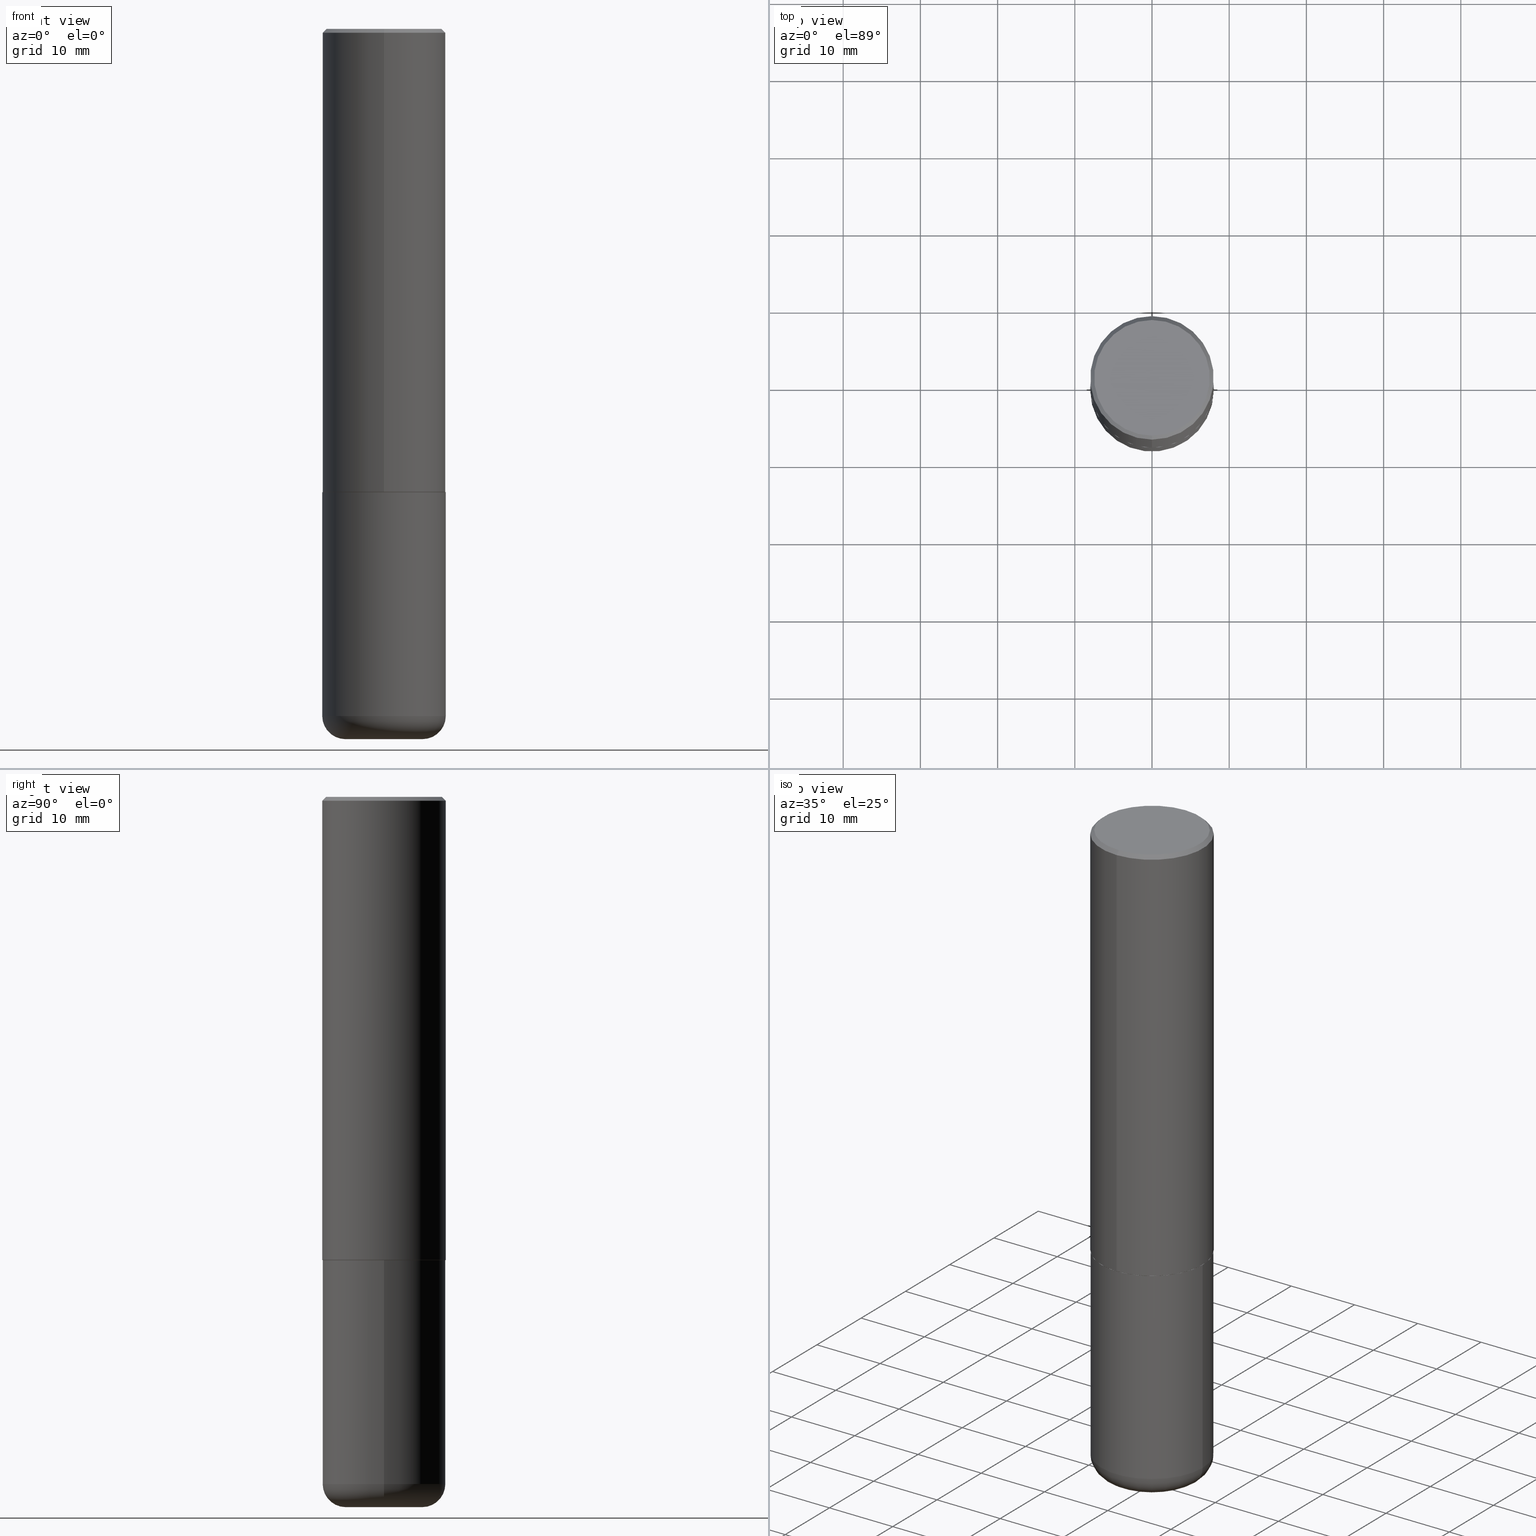
[diagram: canonical four-view strip — front | top / right | iso, engineering-drawing reading convention]
A machine part, canonical four-view strip (front | top / right | iso — engineering-drawing reading convention). The complete STEP part file that produces these views, byte-faithful:
ISO-10303-21;
HEADER;
FILE_DESCRIPTION (( 'STEP AP203' ),
    '1' );
FILE_NAME ('45181.STEP',
    '2024-03-04T16:16:40',
    ( '' ),
    ( '' ),
    'SwSTEP 2.0',
    'SolidWorks 2023',
    '' );
FILE_SCHEMA (( 'CONFIG_CONTROL_DESIGN' ));
ENDSEC;

DATA;
#1 = CC_DESIGN_PERSON_AND_ORGANIZATION_ASSIGNMENT ( #315, #181, ( #361 ) ) ;
#2 = CARTESIAN_POINT ( 'NONE',  ( 4.893464128848368385E-31, -6.979344562289319109E-17, -0.02000000000000006981 ) ) ;
#3 = AXIS2_PLACEMENT_3D ( 'NONE', #224, #129, #417 ) ;
#4 = CIRCLE ( 'NONE', #58, 0.1180999999999999966 ) ;
#5 = ORIENTED_EDGE ( 'NONE', *, *, #223, .F. ) ;
#6 = ORIENTED_EDGE ( 'NONE', *, *, #298, .F. ) ;
#7 = CARTESIAN_POINT ( 'NONE',  ( -0.3149500000000000077, 2.237854346276435590E-15, -1.549218606675782676E-29 ) ) ;
#8 = VERTEX_POINT ( 'NONE', #278 ) ;
#9 = DIRECTION ( 'NONE',  ( -4.937700262165053702E-15, -0.7071067811866175168, 0.7071067811864775177 ) ) ;
#10 = SECURITY_CLASSIFICATION ( '', '', #416 ) ;
#11 = VERTEX_POINT ( 'NONE', #244 ) ;
#12 = DIRECTION ( 'NONE',  ( -6.982962677686265922E-15, -1.000000000000000000, 3.483117034309591132E-15 ) ) ;
#13 = ORIENTED_EDGE ( 'NONE', *, *, #380, .T. ) ;
#14 = FACE_OUTER_BOUND ( 'NONE', #392, .T. ) ;
#15 = ORIENTED_EDGE ( 'NONE', *, *, #175, .F. ) ;
#16 = DIRECTION ( 'NONE',  ( -2.445468806185136877E-29, 3.491481338843145188E-15, 1.000000000000000000 ) ) ;
#17 = ORIENTED_EDGE ( 'NONE', *, *, #366, .T. ) ;
#18 = CC_DESIGN_PERSON_AND_ORGANIZATION_ASSIGNMENT ( #56, #383, ( #230 ) ) ;
#19 = COORDINATED_UNIVERSAL_TIME_OFFSET ( 5, 0, .BEHIND. ) ;
#20 = EDGE_LOOP ( 'NONE', ( #80, #98, #240, #42 ) ) ;
#21 = DIRECTION ( 'NONE',  ( -2.446732064424175452E-29, 3.489672281144647968E-15, 1.000000000000000000 ) ) ;
#22 = ADVANCED_FACE ( 'NONE', ( #238 ), #386, .T. ) ;
#23 = DIRECTION ( 'NONE',  ( -2.445468806185136597E-29, 3.491481338843145583E-15, 1.000000000000000000 ) ) ;
#24 = COORDINATED_UNIVERSAL_TIME_OFFSET ( 5, 0, .BEHIND. ) ;
#25 = CC_DESIGN_PERSON_AND_ORGANIZATION_ASSIGNMENT ( #323, #288, ( #77 ) ) ;
#26 = DIRECTION ( 'NONE',  ( 2.446732064424175452E-29, -3.489672281144647968E-15, -1.000000000000000000 ) ) ;
#27 = AXIS2_PLACEMENT_3D ( 'NONE', #114, #126, #324 ) ;
#28 = DATE_AND_TIME ( #152, #391 ) ;
#29 = FACE_OUTER_BOUND ( 'NONE', #301, .T. ) ;
#30 = AXIS2_PLACEMENT_3D ( 'NONE', #212, #411, #87 ) ;
#31 =( GEOMETRIC_REPRESENTATION_CONTEXT ( 3 ) GLOBAL_UNCERTAINTY_ASSIGNED_CONTEXT ( ( #182 ) ) GLOBAL_UNIT_ASSIGNED_CONTEXT ( ( #286, #414, #93 ) ) REPRESENTATION_CONTEXT ( 'NONE', 'WORKASPACE' ) );
#32 = DATE_TIME_ROLE ( 'classification_date' ) ;
#33 = EDGE_CURVE ( 'NONE', #193, #78, #50, .T. ) ;
#34 = CARTESIAN_POINT ( 'NONE',  ( 5.776686413970529753E-29, -8.247577218615278049E-15, -2.362199999999999633 ) ) ;
#35 = ORIENTED_EDGE ( 'NONE', *, *, #55, .T. ) ;
#36 = ORIENTED_EDGE ( 'NONE', *, *, #149, .F. ) ;
#37 = APPROVAL_PERSON_ORGANIZATION ( #219, #369, #353 ) ;
#38 = FACE_OUTER_BOUND ( 'NONE', #334, .T. ) ;
#39 = ORIENTED_EDGE ( 'NONE', *, *, #46, .F. ) ;
#40 = EDGE_CURVE ( 'NONE', #196, #310, #337, .T. ) ;
#41 = DIRECTION ( 'NONE',  ( -6.982962677686266711E-15, -1.000000000000000000, 3.480615376543096919E-15 ) ) ;
#42 = ORIENTED_EDGE ( 'NONE', *, *, #263, .F. ) ;
#43 = CARTESIAN_POINT ( 'NONE',  ( 2.059624841783565247E-15, 0.2949500000000001565, -1.117050136154758706E-15 ) ) ;
#44 = ORIENTED_EDGE ( 'NONE', *, *, #69, .T. ) ;
#45 = DIRECTION ( 'NONE',  ( -6.982962677686265922E-15, -1.000000000000000000, 3.489672281144648363E-15 ) ) ;
#46 = EDGE_CURVE ( 'NONE', #198, #193, #308, .T. ) ;
#47 = DIRECTION ( 'NONE',  ( -6.982962677686265922E-15, -1.000000000000000000, 3.469564049740290009E-15 ) ) ;
#48 = CARTESIAN_POINT ( 'NONE',  ( -2.160713844398143363E-15, -0.3149500000000000632, -0.01999999999999896999 ) ) ;
#49 = VERTEX_POINT ( 'NONE', #148 ) ;
#50 = CIRCLE ( 'NONE', #377, 0.3149500000000002853 ) ;
#51 = VERTEX_POINT ( 'NONE', #277 ) ;
#52 = AXIS2_PLACEMENT_3D ( 'NONE', #2, #399, #12 ) ;
#53 = ADVANCED_BREP_SHAPE_REPRESENTATION ( '45181', ( #407, #130, #404 ), #31 ) ;
#54 = CARTESIAN_POINT ( 'NONE',  ( 2.237854346276435985E-15, 0.3149500000000001743, -1.099072284946507453E-15 ) ) ;
#55 = EDGE_CURVE ( 'NONE', #8, #305, #156, .T. ) ;
#56 = PERSON_AND_ORGANIZATION ( #72, #326 ) ;
#57 = CARTESIAN_POINT ( 'NONE',  ( 8.568678149992099474E-29, -1.223380146317249786E-14, -3.503899999999999793 ) ) ;
#58 = AXIS2_PLACEMENT_3D ( 'NONE', #101, #300, #107 ) ;
#59 = APPROVAL_STATUS ( 'not_yet_approved' ) ;
#60 = CARTESIAN_POINT ( 'NONE',  ( -2.199284095337233467E-15, -0.3149500000000085564, -2.361199999999998411 ) ) ;
#61 = APPROVAL_DATE_TIME ( #328, #284 ) ;
#62 = ADVANCED_FACE ( 'NONE', ( #29 ), #127, .T. ) ;
#63 = ADVANCED_FACE ( 'NONE', ( #253 ), #304, .T. ) ;
#64 = AXIS2_PLACEMENT_3D ( 'NONE', #139, #273, #45 ) ;
#65 = ORIENTED_EDGE ( 'NONE', *, *, #46, .T. ) ;
#66 = TOROIDAL_SURFACE ( 'NONE', #319, 0.1968500000000000250, 0.1181000000000000105 ) ;
#67 = CIRCLE ( 'NONE', #133, 0.3149500000000002853 ) ;
#68 = CARTESIAN_POINT ( 'NONE',  ( 5.776686413970529753E-29, -8.247577218615278049E-15, -2.362199999999999633 ) ) ;
#69 = EDGE_CURVE ( 'NONE', #82, #49, #232, .T. ) ;
#70 = ORIENTED_EDGE ( 'NONE', *, *, #40, .F. ) ;
#71 = FACE_OUTER_BOUND ( 'NONE', #408, .T. ) ;
#72 = PERSON ( 'UNSPECIFIED', 'UNSPECIFIED', 'UNSPECIFIED', ('UNSPECIFIED'), ('UNSPECIFIED'), ('UNSPECIFIED') ) ;
#73 = DIRECTION ( 'NONE',  ( -2.446732064424175452E-29, 3.489672281144647968E-15, 1.000000000000000000 ) ) ;
#74 = ADVANCED_FACE ( 'NONE', ( #413 ), #66, .T. ) ;
#75 = DIRECTION ( 'NONE',  ( -2.445468806185136597E-29, 3.491481338843145583E-15, 1.000000000000000000 ) ) ;
#76 = AXIS2_PLACEMENT_3D ( 'NONE', #368, #207, #272 ) ;
#77 = PRODUCT_DEFINITION_FORMATION_WITH_SPECIFIED_SOURCE ( 'ANY', '', #230, .NOT_KNOWN. ) ;
#78 = VERTEX_POINT ( 'NONE', #60 ) ;
#79 = DIRECTION ( 'NONE',  ( 1.000000000000000000, -6.982962677686266711E-15, 0.000000000000000000 ) ) ;
#80 = ORIENTED_EDGE ( 'NONE', *, *, #124, .T. ) ;
#81 = DIRECTION ( 'NONE',  ( -2.445468806185136597E-29, 3.491481338843145583E-15, 1.000000000000000000 ) ) ;
#82 = VERTEX_POINT ( 'NONE', #153 ) ;
#83 = APPLICATION_PROTOCOL_DEFINITION ( 'international standard', 'config_control_design', 1994, #379 ) ;
#84 = CLOSED_SHELL ( 'NONE', ( #307, #179, #131, #345, #105, #22, #213, #335 ) ) ;
#85 = CONICAL_SURFACE ( 'NONE', #147, 0.3149500000000000077, 0.7853981633974473908 ) ;
#86 = DIRECTION ( 'NONE',  ( -2.445468806185136597E-29, 3.491481338843145583E-15, 1.000000000000000000 ) ) ;
#87 = DIRECTION ( 'NONE',  ( 1.000000000000000000, -6.982962677686267499E-15, 0.000000000000000000 ) ) ;
#88 = CC_DESIGN_DATE_AND_TIME_ASSIGNMENT ( #165, #32, ( #10 ) ) ;
#89 = MECHANICAL_CONTEXT ( 'NONE', #183, 'mechanical' ) ;
#90 = LINE ( 'NONE', #54, #357 ) ;
#91 = CC_DESIGN_APPROVAL ( #369, ( #361 ) ) ;
#92 = EDGE_LOOP ( 'NONE', ( #236, #231, #106, #265 ) ) ;
#93 =( NAMED_UNIT ( * ) SI_UNIT ( $, .STERADIAN. ) SOLID_ANGLE_UNIT ( ) );
#94 = CARTESIAN_POINT ( 'NONE',  ( 0.1968500000000000250, -1.402074161239241360E-14, -3.621999999999999886 ) ) ;
#95 = CARTESIAN_POINT ( 'NONE',  ( 5.779670482582787819E-29, -8.243303862519886547E-15, -2.362199999999999633 ) ) ;
#96 = EDGE_CURVE ( 'NONE', #193, #196, #90, .T. ) ;
#97 = VECTOR ( 'NONE', #16, 39.37007874015748143 ) ;
#98 = ORIENTED_EDGE ( 'NONE', *, *, #116, .T. ) ;
#99 = AXIS2_PLACEMENT_3D ( 'NONE', #351, #385, #325 ) ;
#100 = AXIS2_PLACEMENT_3D ( 'NONE', #95, #303, #348 ) ;
#101 = CARTESIAN_POINT ( 'NONE',  ( 0.1968500000000000250, -1.360839766627503947E-14, -3.503899999999999793 ) ) ;
#102 = CC_DESIGN_SECURITY_CLASSIFICATION ( #10, ( #77 ) ) ;
#103 = EDGE_LOOP ( 'NONE', ( #111, #65, #249, #178 ) ) ;
#104 = CYLINDRICAL_SURFACE ( 'NONE', #242, 0.3149500000000000077 ) ;
#105 = ADVANCED_FACE ( 'NONE', ( #123 ), #218, .T. ) ;
#106 = ORIENTED_EDGE ( 'NONE', *, *, #263, .T. ) ;
#107 = DIRECTION ( 'NONE',  ( 1.000000000000000000, -6.982962677686273021E-15, 0.000000000000000000 ) ) ;
#108 = ORIENTED_EDGE ( 'NONE', *, *, #352, .T. ) ;
#109 = DIRECTION ( 'NONE',  ( 6.982962677686265922E-15, 1.000000000000000000, -3.483117034309591132E-15 ) ) ;
#110 = AXIS2_PLACEMENT_3D ( 'NONE', #245, #342, #174 ) ;
#111 = ORIENTED_EDGE ( 'NONE', *, *, #298, .T. ) ;
#112 = DIMENSIONAL_EXPONENTS ( 1.000000000000000000, 0.000000000000000000, 0.000000000000000000, 0.000000000000000000, 0.000000000000000000, 0.000000000000000000, 0.000000000000000000 ) ;
#113 = CARTESIAN_POINT ( 'NONE',  ( -0.3149500000000000077, -8.002834994617451969E-15, -2.362199999999999633 ) ) ;
#114 = CARTESIAN_POINT ( 'NONE',  ( 4.295056925857058757E-45, -6.125861232635271610E-31, -1.755425936622887402E-16 ) ) ;
#115 = COORDINATED_UNIVERSAL_TIME_OFFSET ( 5, 0, .BEHIND. ) ;
#116 = EDGE_CURVE ( 'NONE', #415, #82, #132, .T. ) ;
#117 = VERTEX_POINT ( 'NONE', #94 ) ;
#118 = PERSON_AND_ORGANIZATION ( #72, #326 ) ;
#119 = EDGE_CURVE ( 'NONE', #415, #117, #187, .T. ) ;
#120 = AXIS2_PLACEMENT_3D ( 'NONE', #43, #237, #309 ) ;
#121 = DIRECTION ( 'NONE',  ( 7.105427357601001859E-15, 1.000000000000000000, -3.491481338843145583E-15 ) ) ;
#122 =( LENGTH_UNIT ( ) NAMED_UNIT ( * ) SI_UNIT ( $, .METRE. ) );
#123 = FACE_OUTER_BOUND ( 'NONE', #168, .T. ) ;
#124 = EDGE_CURVE ( 'NONE', #117, #415, #256, .T. ) ;
#125 = APPLICATION_PROTOCOL_DEFINITION ( 'international standard', 'config_control_design', 1994, #183 ) ;
#126 = DIRECTION ( 'NONE',  ( -2.446732064424175452E-29, 3.489672281144647968E-15, 1.000000000000000000 ) ) ;
#127 = PLANE ( 'NONE',  #99 ) ;
#128 = APPROVAL_PERSON_ORGANIZATION ( #214, #269, #161 ) ;
#129 = DIRECTION ( 'NONE',  ( -2.445468806185136597E-29, 3.491481338843145583E-15, 1.000000000000000000 ) ) ;
#130 = MANIFOLD_SOLID_BREP ( 'Body-Move/Copy2[2]', #84 ) ;
#131 = ADVANCED_FACE ( 'NONE', ( #215 ), #362, .T. ) ;
#132 = CIRCLE ( 'NONE', #371, 0.1180999999999999966 ) ;
#133 = AXIS2_PLACEMENT_3D ( 'NONE', #302, #21, #254 ) ;
#134 = APPROVAL_ROLE ( '' ) ;
#135 = ORIENTED_EDGE ( 'NONE', *, *, #352, .F. ) ;
#136 = CARTESIAN_POINT ( 'NONE',  ( 5.779670482582787819E-29, -8.243303862519886547E-15, -2.362199999999999633 ) ) ;
#137 = CLOSED_SHELL ( 'NONE', ( #255, #74, #393, #360, #63, #62 ) ) ;
#138 = VECTOR ( 'NONE', #247, 39.37007874015748143 ) ;
#139 = CARTESIAN_POINT ( 'NONE',  ( 4.295056925857058757E-45, -6.125861232635271610E-31, -1.755425936622887402E-16 ) ) ;
#140 = ORIENTED_EDGE ( 'NONE', *, *, #280, .T. ) ;
#141 = LINE ( 'NONE', #365, #195 ) ;
#142 = ORIENTED_EDGE ( 'NONE', *, *, #356, .T. ) ;
#143 = LINE ( 'NONE', #7, #295 ) ;
#144 = EDGE_LOOP ( 'NONE', ( #13, #140, #229, #135 ) ) ;
#145 = LINE ( 'NONE', #276, #339 ) ;
#146 = CIRCLE ( 'NONE', #313, 0.3149500000000000077 ) ;
#147 = AXIS2_PLACEMENT_3D ( 'NONE', #172, #336, #109 ) ;
#148 = CARTESIAN_POINT ( 'NONE',  ( 0.3149500000000000077, -1.443308555850978615E-14, -3.503899999999999793 ) ) ;
#149 = EDGE_CURVE ( 'NONE', #372, #51, #146, .T. ) ;
#150 = CALENDAR_DATE ( 2024, 4, 3 ) ;
#151 = EDGE_LOOP ( 'NONE', ( #176, #346, #209, #359 ) ) ;
#152 = CALENDAR_DATE ( 2024, 4, 3 ) ;
#153 = CARTESIAN_POINT ( 'NONE',  ( -0.3149500000000000077, -9.995947116896063452E-15, -3.503899999999999793 ) ) ;
#154 = CALENDAR_DATE ( 2024, 4, 3 ) ;
#155 = DESIGN_CONTEXT ( 'detailed design', #379, 'design' ) ;
#156 = CIRCLE ( 'NONE', #27, 0.2949500000000001565 ) ;
#157 = EDGE_CURVE ( 'NONE', #198, #11, #292, .T. ) ;
#158 = DIRECTION ( 'NONE',  ( 1.000000000000000000, -6.982962677686263555E-15, 4.883557194083111780E-29 ) ) ;
#159 = DATE_TIME_ROLE ( 'creation_date' ) ;
#160 = CARTESIAN_POINT ( 'NONE',  ( 8.568678149992099474E-29, -1.223380146317249786E-14, -3.503899999999999793 ) ) ;
#161 = APPROVAL_ROLE ( '' ) ;
#162 = CARTESIAN_POINT ( 'NONE',  ( 8.568678149992099474E-29, -1.223380146317249786E-14, -3.503899999999999793 ) ) ;
#163 = AXIS2_PLACEMENT_3D ( 'NONE', #370, #268, #79 ) ;
#164 = COORDINATED_UNIVERSAL_TIME_OFFSET ( 5, 0, .BEHIND. ) ;
#165 = DATE_AND_TIME ( #154, #257 ) ;
#166 = CARTESIAN_POINT ( 'NONE',  ( 0.000000000000000000, 0.000000000000000000, 0.000000000000000000 ) ) ;
#167 = DIRECTION ( 'NONE',  ( -1.000000000000000000, 6.982962677686265922E-15, -4.876176775795935793E-29 ) ) ;
#168 = EDGE_LOOP ( 'NONE', ( #322, #374, #17, #70 ) ) ;
#169 = DIRECTION ( 'NONE',  ( -2.446732064424175452E-29, 3.489672281144647968E-15, 1.000000000000000000 ) ) ;
#170 = DIRECTION ( 'NONE',  ( -2.446732064424174891E-29, 3.489672281144648363E-15, 1.000000000000000000 ) ) ;
#171 = ORIENTED_EDGE ( 'NONE', *, *, #124, .F. ) ;
#172 = CARTESIAN_POINT ( 'NONE',  ( 4.893464128848368385E-31, -6.979344562289319109E-17, -0.02000000000000006981 ) ) ;
#173 = DIRECTION ( 'NONE',  ( -6.982962677686265922E-15, -1.000000000000000000, 3.483117034309591132E-15 ) ) ;
#174 = DIRECTION ( 'NONE',  ( 1.000000000000000000, -6.982962677686266711E-15, 4.876176775795936353E-29 ) ) ;
#175 = EDGE_CURVE ( 'NONE', #305, #310, #291, .T. ) ;
#176 = ORIENTED_EDGE ( 'NONE', *, *, #287, .F. ) ;
#177 = VECTOR ( 'NONE', #9, 39.37007874015748143 ) ;
#178 = ORIENTED_EDGE ( 'NONE', *, *, #227, .F. ) ;
#179 = ADVANCED_FACE ( 'NONE', ( #221 ), #241, .T. ) ;
#180 = CARTESIAN_POINT ( 'NONE',  ( 2.234301632597693067E-15, 0.3139499999999917357, -2.362200000000000966 ) ) ;
#181 = PERSON_AND_ORGANIZATION_ROLE ( 'creator' ) ;
#182 = UNCERTAINTY_MEASURE_WITH_UNIT (LENGTH_MEASURE( 1.000000000000000082E-05 ), #286, 'distance_accuracy_value', 'NONE');
#183 = APPLICATION_CONTEXT ( 'configuration controlled 3d designs of mechanical parts and assemblies' ) ;
#184 = PERSON_AND_ORGANIZATION_ROLE ( 'classification_officer' ) ;
#185 = DIRECTION ( 'NONE',  ( -2.445468806185136597E-29, 3.491481338843145583E-15, 1.000000000000000000 ) ) ;
#186 = DIRECTION ( 'NONE',  ( 1.000000000000000000, 0.000000000000000000, 0.000000000000000000 ) ) ;
#187 = CIRCLE ( 'NONE', #3, 0.1968500000000000250 ) ;
#188 = LOCAL_TIME ( 11, 16, 40.00000000000000000, #164 ) ;
#189 = DIRECTION ( 'NONE',  ( 1.000000000000000000, -6.982962677686263555E-15, 4.883557194083111780E-29 ) ) ;
#190 = APPROVAL_DATE_TIME ( #409, #269 ) ;
#191 = DIRECTION ( 'NONE',  ( -2.446732064424175452E-29, 3.489672281144648363E-15, 1.000000000000000000 ) ) ;
#192 = AXIS2_PLACEMENT_3D ( 'NONE', #200, #338, #173 ) ;
#193 = VERTEX_POINT ( 'NONE', #381 ) ;
#194 = AXIS2_PLACEMENT_3D ( 'NONE', #318, #26, #285 ) ;
#195 = VECTOR ( 'NONE', #373, 39.37007874015748143 ) ;
#196 = VERTEX_POINT ( 'NONE', #267 ) ;
#197 = DIRECTION ( 'NONE',  ( 2.438088387897960049E-29, -3.491481338843145188E-15, -1.000000000000000000 ) ) ;
#198 = VERTEX_POINT ( 'NONE', #180 ) ;
#199 = LINE ( 'NONE', #311, #177 ) ;
#200 = CARTESIAN_POINT ( 'NONE',  ( 4.893464128848368385E-31, -6.979344562289319109E-17, -0.02000000000000006981 ) ) ;
#201 = PRODUCT_RELATED_PRODUCT_CATEGORY ( 'detail', '', ( #230 ) ) ;
#202 = AXIS2_PLACEMENT_3D ( 'NONE', #57, #185, #349 ) ;
#203 = LOCAL_TIME ( 11, 16, 40.00000000000000000, #248 ) ;
#204 = DIRECTION ( 'NONE',  ( -2.445468806185136877E-29, 3.491481338843145188E-15, 1.000000000000000000 ) ) ;
#205 = CARTESIAN_POINT ( 'NONE',  ( 5.777223750518362448E-29, -8.239814190238740974E-15, -2.361199999999999743 ) ) ;
#206 = PLANE ( 'NONE',  #120 ) ;
#207 = DIRECTION ( 'NONE',  ( -2.446732064424175452E-29, 3.489672281144647968E-15, 1.000000000000000000 ) ) ;
#208 = DIRECTION ( 'NONE',  ( 1.000000000000000000, -6.982962677686263555E-15, 0.000000000000000000 ) ) ;
#209 = ORIENTED_EDGE ( 'NONE', *, *, #223, .T. ) ;
#210 = AXIS2_PLACEMENT_3D ( 'NONE', #162, #23, #189 ) ;
#211 = CIRCLE ( 'NONE', #395, 0.3139500000000000068 ) ;
#212 = CARTESIAN_POINT ( 'NONE',  ( 8.857488016002564476E-29, -1.264614540928987199E-14, -3.621999999999999886 ) ) ;
#213 = ADVANCED_FACE ( 'NONE', ( #225 ), #297, .F. ) ;
#214 = PERSON_AND_ORGANIZATION ( #72, #326 ) ;
#215 = FACE_OUTER_BOUND ( 'NONE', #151, .T. ) ;
#216 = CC_DESIGN_DATE_AND_TIME_ASSIGNMENT ( #320, #159, ( #361 ) ) ;
#217 = DIRECTION ( 'NONE',  ( 0.000000000000000000, 0.000000000000000000, 1.000000000000000000 ) ) ;
#218 = CYLINDRICAL_SURFACE ( 'NONE', #330, 0.3149500000000001743 ) ;
#219 = PERSON_AND_ORGANIZATION ( #72, #326 ) ;
#220 = CIRCLE ( 'NONE', #52, 0.3149500000000000077 ) ;
#221 = FACE_OUTER_BOUND ( 'NONE', #329, .T. ) ;
#222 = ORIENTED_EDGE ( 'NONE', *, *, #410, .T. ) ;
#223 = EDGE_CURVE ( 'NONE', #310, #196, #220, .T. ) ;
#224 = CARTESIAN_POINT ( 'NONE',  ( 8.857488016002564476E-29, -1.264614540928987199E-14, -3.621999999999999886 ) ) ;
#225 = FACE_OUTER_BOUND ( 'NONE', #398, .T. ) ;
#226 = APPROVAL_PERSON_ORGANIZATION ( #228, #284, #134 ) ;
#227 = EDGE_CURVE ( 'NONE', #11, #78, #199, .T. ) ;
#228 = PERSON_AND_ORGANIZATION ( #72, #326 ) ;
#229 = ORIENTED_EDGE ( 'NONE', *, *, #293, .F. ) ;
#230 = PRODUCT ( '45181', '45181', '', ( #89 ) ) ;
#231 = ORIENTED_EDGE ( 'NONE', *, *, #119, .T. ) ;
#232 = CIRCLE ( 'NONE', #202, 0.3149500000000000077 ) ;
#233 = AXIS2_PLACEMENT_3D ( 'NONE', #283, #294, #402 ) ;
#234 = LINE ( 'NONE', #306, #97 ) ;
#235 = DIRECTION ( 'NONE',  ( -2.445468806185136597E-29, 3.491481338843145583E-15, 1.000000000000000000 ) ) ;
#236 = ORIENTED_EDGE ( 'NONE', *, *, #116, .F. ) ;
#237 = DIRECTION ( 'NONE',  ( 2.446732064424174891E-29, -3.489672281144648363E-15, -1.000000000000000000 ) ) ;
#238 = FACE_OUTER_BOUND ( 'NONE', #274, .T. ) ;
#239 = DIRECTION ( 'NONE',  ( -6.982962677686266711E-15, -1.000000000000000000, 3.480615376543096919E-15 ) ) ;
#240 = ORIENTED_EDGE ( 'NONE', *, *, #380, .F. ) ;
#241 = CYLINDRICAL_SURFACE ( 'NONE', #233, 0.3149500000000001743 ) ;
#242 = AXIS2_PLACEMENT_3D ( 'NONE', #166, #75, #243 ) ;
#243 = DIRECTION ( 'NONE',  ( 1.000000000000000000, -6.982962677686266711E-15, 4.876176775795936353E-29 ) ) ;
#244 = CARTESIAN_POINT ( 'NONE',  ( -2.192301132659545875E-15, -0.3139500000000082780, -2.362199999999998745 ) ) ;
#245 = CARTESIAN_POINT ( 'NONE',  ( 0.000000000000000000, 0.000000000000000000, 0.000000000000000000 ) ) ;
#246 = ORIENTED_EDGE ( 'NONE', *, *, #280, .F. ) ;
#247 = DIRECTION ( 'NONE',  ( -4.851104656540959542E-15, -0.7071067811865493491, -0.7071067811865457964 ) ) ;
#248 = COORDINATED_UNIVERSAL_TIME_OFFSET ( 5, 0, .BEHIND. ) ;
#249 = ORIENTED_EDGE ( 'NONE', *, *, #410, .F. ) ;
#250 = PERSON_AND_ORGANIZATION ( #72, #326 ) ;
#251 = AXIS2_PLACEMENT_3D ( 'NONE', #136, #396, #41 ) ;
#252 = DIRECTION ( 'NONE',  ( 1.000000000000000000, -6.982962677686266711E-15, 0.000000000000000000 ) ) ;
#253 = FACE_OUTER_BOUND ( 'NONE', #92, .T. ) ;
#254 = DIRECTION ( 'NONE',  ( -6.982962677686265922E-15, -1.000000000000000000, 3.469564049740290009E-15 ) ) ;
#255 = ADVANCED_FACE ( 'NONE', ( #333 ), #104, .T. ) ;
#256 = CIRCLE ( 'NONE', #30, 0.1968500000000000250 ) ;
#257 = LOCAL_TIME ( 11, 16, 40.00000000000000000, #24 ) ;
#258 = DIRECTION ( 'NONE',  ( -6.982962677686264344E-15, -1.000000000000000000, 3.489672281144647968E-15 ) ) ;
#259 = CALENDAR_DATE ( 2024, 4, 3 ) ;
#260 = LOCAL_TIME ( 11, 16, 40.00000000000000000, #115 ) ;
#261 = ORIENTED_EDGE ( 'NONE', *, *, #119, .F. ) ;
#262 = APPROVAL_STATUS ( 'not_yet_approved' ) ;
#263 = EDGE_CURVE ( 'NONE', #117, #49, #4, .T. ) ;
#264 = PLANE ( 'NONE',  #275 ) ;
#265 = ORIENTED_EDGE ( 'NONE', *, *, #69, .F. ) ;
#266 = AXIS2_PLACEMENT_3D ( 'NONE', #375, #81, #208 ) ;
#267 = CARTESIAN_POINT ( 'NONE',  ( 2.199284095337289871E-15, 0.3149499999999999522, -0.02000000000000116615 ) ) ;
#268 = DIRECTION ( 'NONE',  ( -2.445468806185136597E-29, 3.491481338843145583E-15, 1.000000000000000000 ) ) ;
#269 = APPROVAL ( #59, 'UNSPECIFIED' ) ;
#270 = EDGE_LOOP ( 'NONE', ( #15, #403, #142, #358 ) ) ;
#271 = CYLINDRICAL_SURFACE ( 'NONE', #110, 0.3149500000000000077 ) ;
#272 = DIRECTION ( 'NONE',  ( -6.982962677686266711E-15, -1.000000000000000000, 3.480615376543096919E-15 ) ) ;
#273 = DIRECTION ( 'NONE',  ( -2.446732064424175452E-29, 3.489672281144647968E-15, 1.000000000000000000 ) ) ;
#274 = EDGE_LOOP ( 'NONE', ( #39, #376, #343, #296 ) ) ;
#275 = AXIS2_PLACEMENT_3D ( 'NONE', #68, #197, #167 ) ;
#276 = CARTESIAN_POINT ( 'NONE',  ( -2.199284095337290265E-15, -0.3149500000000001743, 1.099072284946507453E-15 ) ) ;
#277 = CARTESIAN_POINT ( 'NONE',  ( 0.3149500000000000077, -1.044686131395256792E-14, -2.362199999999999633 ) ) ;
#278 = CARTESIAN_POINT ( 'NONE',  ( 2.129454468560427362E-15, 0.2949500000000001565, -1.204821432985903076E-15 ) ) ;
#279 = CALENDAR_DATE ( 2024, 4, 3 ) ;
#280 = EDGE_CURVE ( 'NONE', #82, #372, #143, .T. ) ;
#281 = CARTESIAN_POINT ( 'NONE',  ( -0.1968500000000000250, -1.083509808782873928E-14, -3.503899999999999793 ) ) ;
#282 = CARTESIAN_POINT ( 'NONE',  ( -0.1968500000000000250, -1.062169457542108922E-14, -3.621999999999999886 ) ) ;
#283 = CARTESIAN_POINT ( 'NONE',  ( 0.000000000000000000, 0.000000000000000000, 0.000000000000000000 ) ) ;
#284 = APPROVAL ( #262, 'UNSPECIFIED' ) ;
#285 = DIRECTION ( 'NONE',  ( 6.982962677686265922E-15, 1.000000000000000000, -3.483117034309591132E-15 ) ) ;
#286 =( CONVERSION_BASED_UNIT ( 'INCH', #412 ) LENGTH_UNIT ( ) NAMED_UNIT ( #112 ) );
#287 = EDGE_CURVE ( 'NONE', #305, #8, #331, .T. ) ;
#288 = PERSON_AND_ORGANIZATION_ROLE ( 'creator' ) ;
#289 = DIRECTION ( 'NONE',  ( -1.000000000000000000, 7.105427357601005014E-15, 0.000000000000000000 ) ) ;
#290 = SHAPE_DEFINITION_REPRESENTATION ( #397, #53 ) ;
#291 = LINE ( 'NONE', #299, #138 ) ;
#292 = CIRCLE ( 'NONE', #100, 0.3139500000000000068 ) ;
#293 = EDGE_CURVE ( 'NONE', #51, #372, #378, .T. ) ;
#294 = DIRECTION ( 'NONE',  ( -2.446732064424175452E-29, 3.489672281144647968E-15, 1.000000000000000000 ) ) ;
#295 = VECTOR ( 'NONE', #204, 39.37007874015748143 ) ;
#296 = ORIENTED_EDGE ( 'NONE', *, *, #33, .F. ) ;
#297 = PLANE ( 'NONE',  #388 ) ;
#298 = EDGE_CURVE ( 'NONE', #11, #198, #211, .T. ) ;
#299 = CARTESIAN_POINT ( 'NONE',  ( -2.160713844398143363E-15, -0.3149500000000000632, -0.01999999999999896999 ) ) ;
#300 = DIRECTION ( 'NONE',  ( -6.982962677686266711E-15, -1.000000000000000000, 3.491481338843145583E-15 ) ) ;
#301 = EDGE_LOOP ( 'NONE', ( #171, #261 ) ) ;
#302 = CARTESIAN_POINT ( 'NONE',  ( 5.777223750518362448E-29, -8.239814190238740974E-15, -2.361199999999999743 ) ) ;
#303 = DIRECTION ( 'NONE',  ( -2.446732064424175452E-29, 3.489672281144647968E-15, 1.000000000000000000 ) ) ;
#304 = TOROIDAL_SURFACE ( 'NONE', #210, 0.1968500000000000250, 0.1181000000000000105 ) ;
#305 = VERTEX_POINT ( 'NONE', #394 ) ;
#306 = CARTESIAN_POINT ( 'NONE',  ( 0.3149500000000000077, -2.199284095337289871E-15, 1.535751875536930130E-29 ) ) ;
#307 = ADVANCED_FACE ( 'NONE', ( #340 ), #363, .T. ) ;
#308 = LINE ( 'NONE', #400, #390 ) ;
#309 = DIRECTION ( 'NONE',  ( 6.982962677686265922E-15, 1.000000000000000000, -3.489672281144648363E-15 ) ) ;
#310 = VERTEX_POINT ( 'NONE', #48 ) ;
#311 = CARTESIAN_POINT ( 'NONE',  ( -2.192301132659545875E-15, -0.3139500000000082780, -2.362199999999998745 ) ) ;
#312 = DIRECTION ( 'NONE',  ( 5.024295867788576727E-15, 0.7071067811866224018, 0.7071067811864726327 ) ) ;
#313 = AXIS2_PLACEMENT_3D ( 'NONE', #34, #235, #252 ) ;
#314 = CC_DESIGN_APPROVAL ( #284, ( #10 ) ) ;
#315 = PERSON_AND_ORGANIZATION ( #72, #326 ) ;
#316 = ORIENTED_EDGE ( 'NONE', *, *, #96, .T. ) ;
#317 = APPROVAL_STATUS ( 'not_yet_approved' ) ;
#318 = CARTESIAN_POINT ( 'NONE',  ( 4.893464128848368385E-31, -6.979344562289319109E-17, -0.02000000000000006981 ) ) ;
#319 = AXIS2_PLACEMENT_3D ( 'NONE', #160, #86, #158 ) ;
#320 = DATE_AND_TIME ( #150, #260 ) ;
#321 = CARTESIAN_POINT ( 'NONE',  ( 0.000000000000000000, 0.000000000000000000, 0.000000000000000000 ) ) ;
#322 = ORIENTED_EDGE ( 'NONE', *, *, #96, .F. ) ;
#323 = PERSON_AND_ORGANIZATION ( #72, #326 ) ;
#324 = DIRECTION ( 'NONE',  ( -6.982962677686265922E-15, -1.000000000000000000, 3.489672281144648363E-15 ) ) ;
#325 = DIRECTION ( 'NONE',  ( -1.000000000000000000, 6.982962677686265922E-15, -4.876176775795935793E-29 ) ) ;
#326 = ORGANIZATION ( 'UNSPECIFIED', 'UNSPECIFIED', '' ) ;
#327 = CARTESIAN_POINT ( 'NONE',  ( 5.779670482582787819E-29, -8.243303862519886547E-15, -2.362199999999999633 ) ) ;
#328 = DATE_AND_TIME ( #259, #188 ) ;
#329 = EDGE_LOOP ( 'NONE', ( #222, #316, #5, #406 ) ) ;
#330 = AXIS2_PLACEMENT_3D ( 'NONE', #321, #355, #258 ) ;
#331 = CIRCLE ( 'NONE', #64, 0.2949500000000001565 ) ;
#332 = ORIENTED_EDGE ( 'NONE', *, *, #293, .T. ) ;
#333 = FACE_OUTER_BOUND ( 'NONE', #144, .T. ) ;
#334 = EDGE_LOOP ( 'NONE', ( #332, #387 ) ) ;
#335 = ADVANCED_FACE ( 'NONE', ( #71 ), #206, .F. ) ;
#336 = DIRECTION ( 'NONE',  ( 2.446732064424175452E-29, -3.489672281144647968E-15, -1.000000000000000000 ) ) ;
#337 = CIRCLE ( 'NONE', #192, 0.3149500000000000077 ) ;
#338 = DIRECTION ( 'NONE',  ( -2.446732064424175452E-29, 3.489672281144647968E-15, 1.000000000000000000 ) ) ;
#339 = VECTOR ( 'NONE', #405, 39.37007874015748143 ) ;
#340 = FACE_OUTER_BOUND ( 'NONE', #103, .T. ) ;
#341 = ORIENTED_EDGE ( 'NONE', *, *, #157, .F. ) ;
#342 = DIRECTION ( 'NONE',  ( -2.445468806185136597E-29, 3.491481338843145583E-15, 1.000000000000000000 ) ) ;
#343 = ORIENTED_EDGE ( 'NONE', *, *, #227, .T. ) ;
#344 = CARTESIAN_POINT ( 'NONE',  ( 0.000000000000000000, 0.000000000000000000, 0.000000000000000000 ) ) ;
#345 = ADVANCED_FACE ( 'NONE', ( #367 ), #85, .T. ) ;
#346 = ORIENTED_EDGE ( 'NONE', *, *, #175, .T. ) ;
#347 = APPROVAL_DATE_TIME ( #28, #369 ) ;
#348 = DIRECTION ( 'NONE',  ( -6.982962677686266711E-15, -1.000000000000000000, 3.480615376543096919E-15 ) ) ;
#349 = DIRECTION ( 'NONE',  ( 1.000000000000000000, -6.982962677686263555E-15, 0.000000000000000000 ) ) ;
#350 = PERSON_AND_ORGANIZATION_ROLE ( 'design_supplier' ) ;
#351 = CARTESIAN_POINT ( 'NONE',  ( 8.857488016002564476E-29, -1.264614540928987199E-14, -3.621999999999999886 ) ) ;
#352 = EDGE_CURVE ( 'NONE', #49, #51, #234, .T. ) ;
#353 = APPROVAL_ROLE ( '' ) ;
#354 = CIRCLE ( 'NONE', #266, 0.3149500000000000077 ) ;
#355 = DIRECTION ( 'NONE',  ( -2.446732064424175452E-29, 3.489672281144647968E-15, 1.000000000000000000 ) ) ;
#356 = EDGE_CURVE ( 'NONE', #8, #196, #141, .T. ) ;
#357 = VECTOR ( 'NONE', #191, 39.37007874015748143 ) ;
#358 = ORIENTED_EDGE ( 'NONE', *, *, #40, .T. ) ;
#359 = ORIENTED_EDGE ( 'NONE', *, *, #356, .F. ) ;
#360 = ADVANCED_FACE ( 'NONE', ( #14 ), #271, .T. ) ;
#361 = PRODUCT_DEFINITION ( 'UNKNOWN', '', #77, #155 ) ;
#362 = CONICAL_SURFACE ( 'NONE', #194, 0.3149500000000000077, 0.7853981633974473908 ) ;
#363 = CONICAL_SURFACE ( 'NONE', #251, 0.3139500000000000068, 0.7853981633975507526 ) ;
#364 = ORIENTED_EDGE ( 'NONE', *, *, #287, .T. ) ;
#365 = CARTESIAN_POINT ( 'NONE',  ( 2.199284095337289871E-15, 0.3149499999999999522, -0.02000000000000116615 ) ) ;
#366 = EDGE_CURVE ( 'NONE', #78, #310, #145, .T. ) ;
#367 = FACE_OUTER_BOUND ( 'NONE', #270, .T. ) ;
#368 = CARTESIAN_POINT ( 'NONE',  ( 5.779670482582787819E-29, -8.243303862519886547E-15, -2.362199999999999633 ) ) ;
#369 = APPROVAL ( #317, 'UNSPECIFIED' ) ;
#370 = CARTESIAN_POINT ( 'NONE',  ( 5.776686413970529753E-29, -8.247577218615278049E-15, -2.362199999999999633 ) ) ;
#371 = AXIS2_PLACEMENT_3D ( 'NONE', #281, #121, #289 ) ;
#372 = VERTEX_POINT ( 'NONE', #113 ) ;
#373 = DIRECTION ( 'NONE',  ( 4.937700262164543309E-15, 0.7071067811865444641, -0.7071067811865506814 ) ) ;
#374 = ORIENTED_EDGE ( 'NONE', *, *, #33, .T. ) ;
#375 = CARTESIAN_POINT ( 'NONE',  ( 8.568678149992099474E-29, -1.223380146317249786E-14, -3.503899999999999793 ) ) ;
#376 = ORIENTED_EDGE ( 'NONE', *, *, #157, .T. ) ;
#377 = AXIS2_PLACEMENT_3D ( 'NONE', #205, #73, #47 ) ;
#378 = CIRCLE ( 'NONE', #163, 0.3149500000000000077 ) ;
#379 = APPLICATION_CONTEXT ( 'configuration controlled 3d designs of mechanical parts and assemblies' ) ;
#380 = EDGE_CURVE ( 'NONE', #49, #82, #354, .T. ) ;
#381 = CARTESIAN_POINT ( 'NONE',  ( 2.237854346276465567E-15, 0.3149499999999920141, -2.361200000000000632 ) ) ;
#382 = CC_DESIGN_PERSON_AND_ORGANIZATION_ASSIGNMENT ( #118, #350, ( #77 ) ) ;
#383 = PERSON_AND_ORGANIZATION_ROLE ( 'design_owner' ) ;
#384 = DIRECTION ( 'NONE',  ( -6.982962677686265922E-15, -1.000000000000000000, 3.489672281144648363E-15 ) ) ;
#385 = DIRECTION ( 'NONE',  ( 2.438088387897960049E-29, -3.491481338843145188E-15, -1.000000000000000000 ) ) ;
#386 = CONICAL_SURFACE ( 'NONE', #76, 0.3139500000000000068, 0.7853981633975507526 ) ;
#387 = ORIENTED_EDGE ( 'NONE', *, *, #149, .T. ) ;
#388 = AXIS2_PLACEMENT_3D ( 'NONE', #327, #170, #384 ) ;
#389 = CC_DESIGN_PERSON_AND_ORGANIZATION_ASSIGNMENT ( #250, #184, ( #10 ) ) ;
#390 = VECTOR ( 'NONE', #312, 39.37007874015748143 ) ;
#391 = LOCAL_TIME ( 11, 16, 40.00000000000000000, #19 ) ;
#392 = EDGE_LOOP ( 'NONE', ( #246, #44, #108, #36 ) ) ;
#393 = ADVANCED_FACE ( 'NONE', ( #38 ), #264, .F. ) ;
#394 = CARTESIAN_POINT ( 'NONE',  ( -2.092108864420428426E-15, -0.2949500000000001565, 8.537362456613256939E-16 ) ) ;
#395 = AXIS2_PLACEMENT_3D ( 'NONE', #401, #169, #239 ) ;
#396 = DIRECTION ( 'NONE',  ( -2.446732064424175452E-29, 3.489672281144647968E-15, 1.000000000000000000 ) ) ;
#397 = PRODUCT_DEFINITION_SHAPE ( 'NONE', 'NONE',  #361 ) ;
#398 = EDGE_LOOP ( 'NONE', ( #6, #341 ) ) ;
#399 = DIRECTION ( 'NONE',  ( -2.446732064424175452E-29, 3.489672281144647968E-15, 1.000000000000000000 ) ) ;
#400 = CARTESIAN_POINT ( 'NONE',  ( 2.230748918918891775E-15, 0.3139499999999917357, -2.362200000000000966 ) ) ;
#401 = CARTESIAN_POINT ( 'NONE',  ( 5.779670482582787819E-29, -8.243303862519886547E-15, -2.362199999999999633 ) ) ;
#402 = DIRECTION ( 'NONE',  ( -6.982962677686264344E-15, -1.000000000000000000, 3.489672281144647968E-15 ) ) ;
#403 = ORIENTED_EDGE ( 'NONE', *, *, #55, .F. ) ;
#404 = AXIS2_PLACEMENT_3D ( 'NONE', #344, #217, #186 ) ;
#405 = DIRECTION ( 'NONE',  ( -2.446732064424175452E-29, 3.489672281144648363E-15, 1.000000000000000000 ) ) ;
#406 = ORIENTED_EDGE ( 'NONE', *, *, #366, .F. ) ;
#407 = MANIFOLD_SOLID_BREP ( 'Body-Move/Copy2[1]', #137 ) ;
#408 = EDGE_LOOP ( 'NONE', ( #35, #364 ) ) ;
#409 = DATE_AND_TIME ( #279, #203 ) ;
#410 = EDGE_CURVE ( 'NONE', #78, #193, #67, .T. ) ;
#411 = DIRECTION ( 'NONE',  ( -2.445468806185136597E-29, 3.491481338843145583E-15, 1.000000000000000000 ) ) ;
#412 = LENGTH_MEASURE_WITH_UNIT ( LENGTH_MEASURE( 0.02539999999999999897 ), #122 );
#413 = FACE_OUTER_BOUND ( 'NONE', #20, .T. ) ;
#414 =( NAMED_UNIT ( * ) PLANE_ANGLE_UNIT ( ) SI_UNIT ( $, .RADIAN. ) );
#415 = VERTEX_POINT ( 'NONE', #282 ) ;
#416 = SECURITY_CLASSIFICATION_LEVEL ( 'unclassified' ) ;
#417 = DIRECTION ( 'NONE',  ( 1.000000000000000000, -6.982962677686267499E-15, 0.000000000000000000 ) ) ;
#418 = CC_DESIGN_APPROVAL ( #269, ( #77 ) ) ;
ENDSEC;
END-ISO-10303-21;
